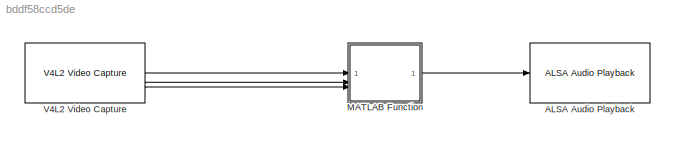
MODEL slx_bddf58ccd5de
KIND model
CONFIG AbsTol = auto
CONFIG EnableMultiTasking = off
CONFIG FixedStep = auto
CONFIG MaxStep = auto
CONFIG MinStep = auto
CONFIG RelTol = 1e-3
CONFIG SampleTimeConstraint = Unconstrained
CONFIG SolverName = VariableStepAuto
CONFIG StartTime = 0.0
CONFIG StopTime = 10.0
BLOCK [Reference] ALSA Audio Playback  REF=raspberrypiAVlib/ALSA Audio Playback
  SourceBlock = raspberrypiAVlib/ALSA Audio Playback
  SourceType = codertarget.raspi.internal.RaspiALSAAudioPlayback
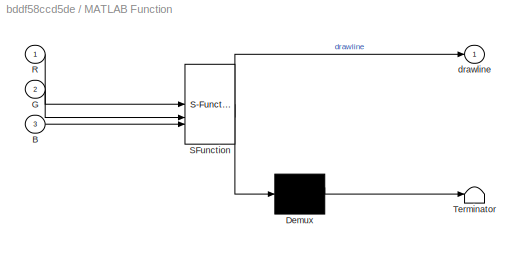
BLOCK [SubSystem] MATLAB Function
  ErrorFcn = Stateflow.Translate.translate
  LibrarySourceBlock = simulink/User-Defined\nFunctions/MATLAB Function
  PermitHierarchicalResolution = ExplicitOnly
  SFBlockType = MATLAB Function
  TreatAsAtomicUnit = on
BLOCK [Demux] MATLAB Function/ Demux 
  Outputs = 1
BLOCK [S-Function] MATLAB Function/ SFunction 
  EnableBusSupport = on
  FunctionName = sf_sfun
  PortCounts = [3 2]
  SFcnIsStateOwnerBlock = off
  SFunctionDeploymentMode = off
  Tag = Stateflow S-Function 2
BLOCK [Terminator] MATLAB Function/ Terminator 
BLOCK [Inport] MATLAB Function/B
  Port = 3
BLOCK [Inport] MATLAB Function/G
  Port = 2
BLOCK [Inport] MATLAB Function/R
BLOCK [Outport] MATLAB Function/drawline
BLOCK [Reference] V4L2 Video Capture  REF=raspberrypiAVlib/V4L2 Video Capture
  SourceBlock = raspberrypiAVlib/V4L2 Video Capture
  SourceType = codertarget.raspi.internal.Raspiv4l2Capture
LINE MATLAB Function:1 -> ALSA Audio Playback:1
LINE V4L2 Video Capture:1 -> MATLAB Function:1
LINE V4L2 Video Capture:2 -> MATLAB Function:2
LINE V4L2 Video Capture:3 -> MATLAB Function:3
CHART MATLAB Function states=1 transitions=1
  STATE_LABEL 'eML_blk_kernel()'
  STATE_LABEL "SCRIPT:\nfunction drawline = fcn(R,G,B)  \nim=cat(3,R,G,B); %%reconstitution de l'image\nini=rgb2gray(im);%%convertir l'image en niveaux de gris\nl=imresize(ini,1/8);    %%compression\ns=imsharpen(l);     %%sharpening the image\nsmo=imgaussfilt(s,5);   %%lissage de l'image\n\nm=edge(smo,'log');%edges\nn=size(l,1);\nm=size(l,2);\n\nfor i=(1:n)\n    p=0;%second limit\n    j=0;%colonnes\n    c=0;%compteur\n    while...<+1259ch>"
CHART  states=0 transitions=0
